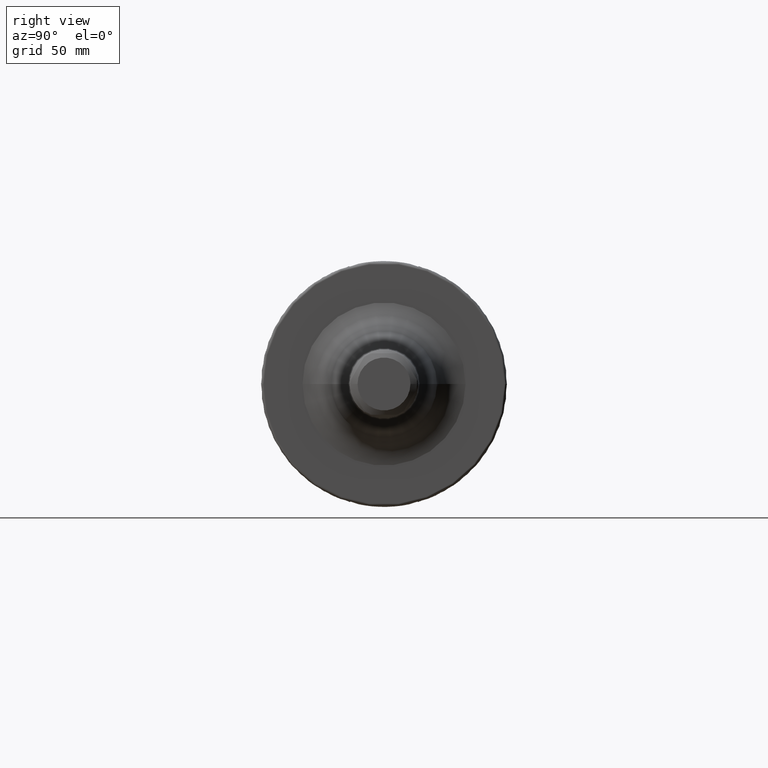
[diagram: clean part render]
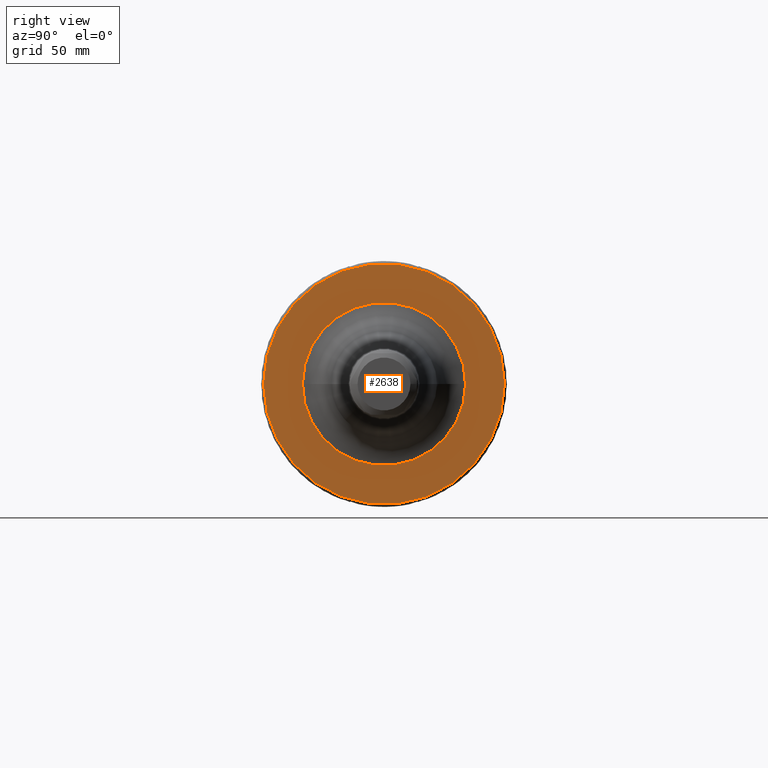
[diagram: same view with one face highlighted and labeled with its STEP entity id]
A machine part, right view. The second image highlights one B-rep face of the part: STEP entity #2638.
In plain terms, the highlighted planar face has unit normal (1, 0, 0).
Its self-contained STEP definition (entity closure, byte-faithful):
#814=CARTESIAN_POINT('',(3.8E1,0.E0,0.E0));
#815=DIRECTION('',(1.E0,0.E0,0.E0));
#816=DIRECTION('',(0.E0,1.E0,0.E0));
#817=AXIS2_PLACEMENT_3D('',#814,#815,#816);
#829=CARTESIAN_POINT('',(3.8E1,0.E0,0.E0));
#830=DIRECTION('',(-1.E0,0.E0,0.E0));
#831=DIRECTION('',(0.E0,1.E0,0.E0));
#832=AXIS2_PLACEMENT_3D('',#829,#830,#831);
#834=CARTESIAN_POINT('',(3.8E1,0.E0,0.E0));
#835=DIRECTION('',(1.E0,0.E0,0.E0));
#836=DIRECTION('',(0.E0,-1.E0,0.E0));
#837=AXIS2_PLACEMENT_3D('',#834,#835,#836);
#839=CARTESIAN_POINT('',(3.8E1,0.E0,0.E0));
#840=DIRECTION('',(1.E0,0.E0,0.E0));
#841=DIRECTION('',(0.E0,1.E0,0.E0));
#842=AXIS2_PLACEMENT_3D('',#839,#840,#841);
#1378=CARTESIAN_POINT('',(3.8E1,4.89875E1,0.E0));
#1379=VERTEX_POINT('',#1378);
#1380=CARTESIAN_POINT('',(3.8E1,-4.89875E1,-1.199847701465E-14));
#1381=VERTEX_POINT('',#1380);
#1503=CARTESIAN_POINT('',(3.8E1,-3.317539125994E1,0.E0));
#1504=CARTESIAN_POINT('',(3.8E1,3.317539125994E1,0.E0));
#1505=VERTEX_POINT('',#1503);
#1506=VERTEX_POINT('',#1504);
#2623=CARTESIAN_POINT('',(3.8E1,0.E0,0.E0));
#2624=DIRECTION('',(1.E0,0.E0,0.E0));
#2625=DIRECTION('',(0.E0,-1.E0,0.E0));
#2626=AXIS2_PLACEMENT_3D('',#2623,#2624,#2625);
#2627=PLANE('',#2626);
#2628=ORIENTED_EDGE('',*,*,#2618,.T.);
#2629=ORIENTED_EDGE('',*,*,#2602,.F.);
#2630=EDGE_LOOP('',(#2628,#2629));
#2631=FACE_OUTER_BOUND('',#2630,.F.);
#2633=ORIENTED_EDGE('',*,*,#2632,.T.);
#2635=ORIENTED_EDGE('',*,*,#2634,.T.);
#2636=EDGE_LOOP('',(#2633,#2635));
#2637=FACE_BOUND('',#2636,.F.);
#2638=ADVANCED_FACE('',(#2631,#2637),#2627,.T.);
#818=CIRCLE('',#817,4.89875E1);
#833=CIRCLE('',#832,4.89875E1);
#838=CIRCLE('',#837,3.317539125994E1);
#843=CIRCLE('',#842,3.317539125994E1);
#2602=EDGE_CURVE('',#1379,#1381,#818,.T.);
#2618=EDGE_CURVE('',#1379,#1381,#833,.T.);
#2632=EDGE_CURVE('',#1505,#1506,#838,.T.);
#2634=EDGE_CURVE('',#1506,#1505,#843,.T.);